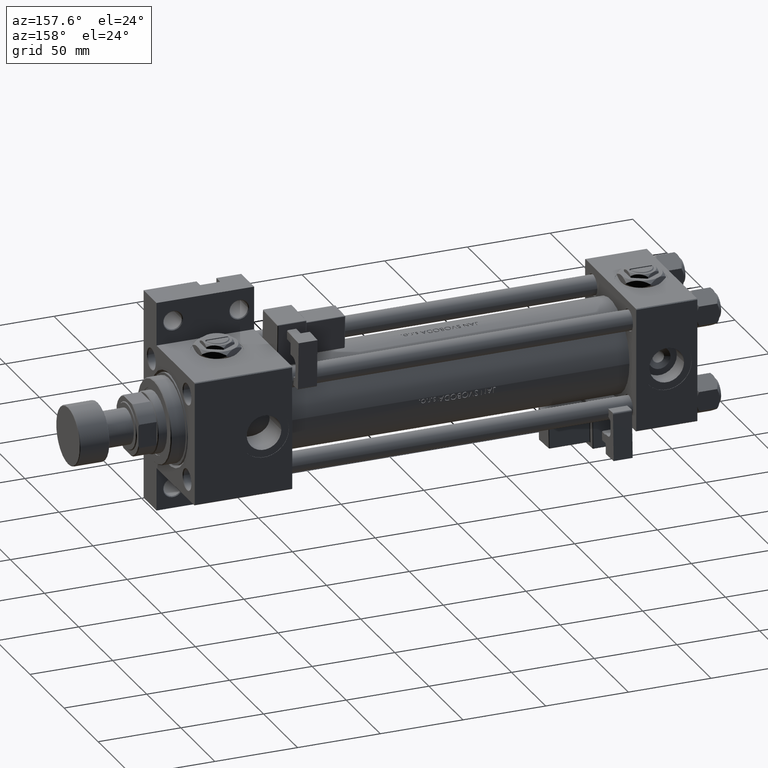
[diagram: clean part render]
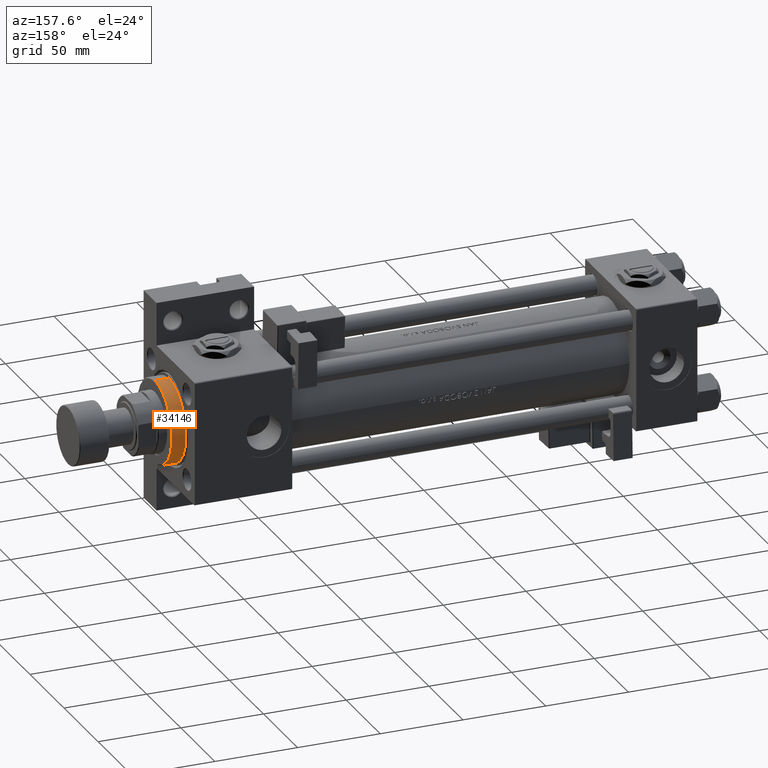
[diagram: same view with one face highlighted and labeled with its STEP entity id]
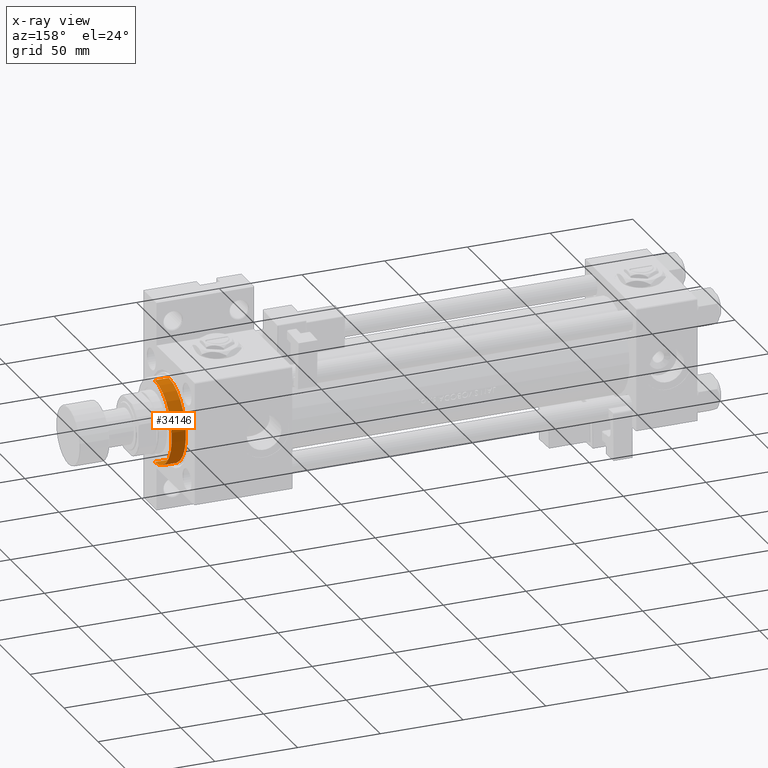
[diagram: x-ray of the same camera — body ghosted, the highlighted face saturated]
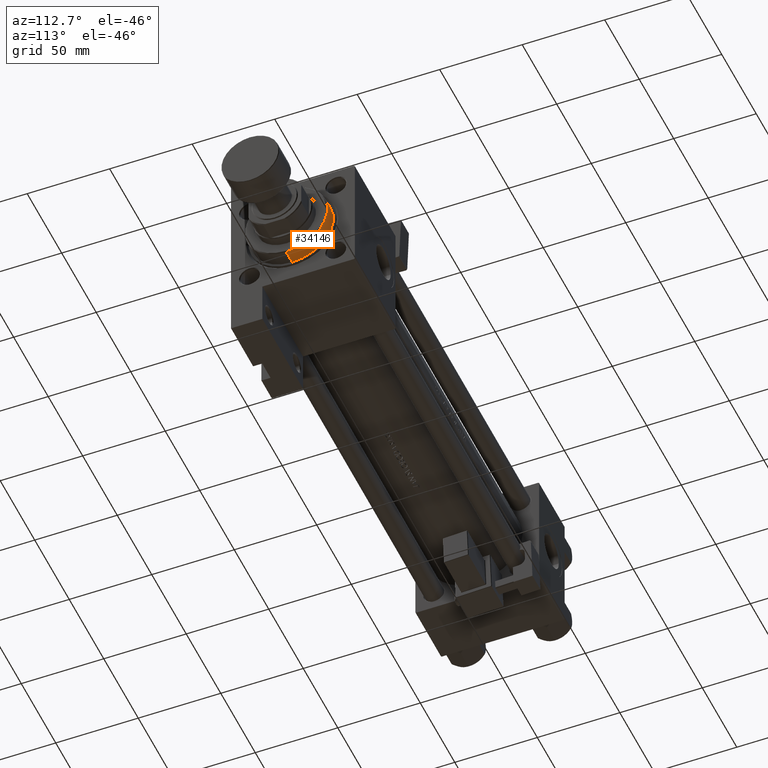
[diagram: same view with one face highlighted and labeled with its STEP entity id]
A machine part, auxiliary view. The second image highlights one B-rep face of the part: STEP entity #34146.
The next image is the same camera in x-ray: the body ghosted, the highlighted face saturated — about 0% of this face is hidden behind the body in this view.
A second angle (auxiliary view) of the same face is appended — the face is thin or edge-on in the first view.
In plain terms, the highlighted cylindrical surface (partial cylindrical patch) has radius 25 mm, axis along (-1, 0, 0).
Its self-contained STEP definition (entity closure, byte-faithful):
#1025 = ORIENTED_EDGE ( 'NONE', *, *, #17837, .T. ) ;
#1619 = LINE ( 'NONE', #30474, #20829 ) ;
#4899 = DIRECTION ( 'NONE',  ( 0.000000000000000000, 0.000000000000000000, -1.000000000000000000 ) ) ;
#6096 = AXIS2_PLACEMENT_3D ( 'NONE', #19765, #44142, #36464 ) ;
#7431 = LINE ( 'NONE', #39498, #27236 ) ;
#8668 = VERTEX_POINT ( 'NONE', #51876 ) ;
#11913 = DIRECTION ( 'NONE',  ( 1.000000000000000000, 0.000000000000000000, 0.000000000000000000 ) ) ;
#15082 = DIRECTION ( 'NONE',  ( 0.000000000000000000, 0.000000000000000000, 1.000000000000000000 ) ) ;
#15786 = CIRCLE ( 'NONE', #25938, 25.00000000000000000 ) ;
#16679 = EDGE_CURVE ( 'NONE', #23454, #26683, #1619, .T. ) ;
#17837 = EDGE_CURVE ( 'NONE', #26683, #23383, #15786, .T. ) ;
#19600 = CIRCLE ( 'NONE', #44980, 25.00000000000000000 ) ;
#19765 = CARTESIAN_POINT ( 'NONE',  ( 0.000000000000000000, 0.000000000000000000, 37.69999999999999574 ) ) ;
#20829 = VECTOR ( 'NONE', #34445, 1000.000000000000000 ) ;
#22084 = ORIENTED_EDGE ( 'NONE', *, *, #16679, .T. ) ;
#23383 = VERTEX_POINT ( 'NONE', #48440 ) ;
#23454 = VERTEX_POINT ( 'NONE', #23559 ) ;
#23559 = CARTESIAN_POINT ( 'NONE',  ( -25.00000000000000000, 0.000000000000000000, 37.20000000000001705 ) ) ;
#24322 = ORIENTED_EDGE ( 'NONE', *, *, #29670, .F. ) ;
#25938 = AXIS2_PLACEMENT_3D ( 'NONE', #32048, #15082, #11913 ) ;
#26683 = VERTEX_POINT ( 'NONE', #37483 ) ;
#27054 = DIRECTION ( 'NONE',  ( -0.000000000000000000, -0.000000000000000000, -1.000000000000000000 ) ) ;
#27236 = VECTOR ( 'NONE', #27054, 1000.000000000000000 ) ;
#28774 = FACE_OUTER_BOUND ( 'NONE', #44370, .T. ) ;
#29077 = EDGE_CURVE ( 'NONE', #8668, #23454, #19600, .T. ) ;
#29670 = EDGE_CURVE ( 'NONE', #8668, #23383, #7431, .T. ) ;
#30474 = CARTESIAN_POINT ( 'NONE',  ( -25.00000000000000000, 0.000000000000000000, 37.69999999999999574 ) ) ;
#32048 = CARTESIAN_POINT ( 'NONE',  ( 0.000000000000000000, 0.000000000000000000, 28.69999999999999929 ) ) ;
#33756 = DIRECTION ( 'NONE',  ( 1.000000000000000000, 0.000000000000000000, 0.000000000000000000 ) ) ;
#34146 = ADVANCED_FACE ( 'NONE', ( #28774 ), #44925, .T. ) ;
#34445 = DIRECTION ( 'NONE',  ( -0.000000000000000000, -0.000000000000000000, -1.000000000000000000 ) ) ;
#36464 = DIRECTION ( 'NONE',  ( -1.000000000000000000, 0.000000000000000000, 0.000000000000000000 ) ) ;
#37474 = CARTESIAN_POINT ( 'NONE',  ( 0.000000000000000000, 0.000000000000000000, 37.20000000000001705 ) ) ;
#37483 = CARTESIAN_POINT ( 'NONE',  ( -25.00000000000000000, 0.000000000000000000, 28.69999999999999929 ) ) ;
#39498 = CARTESIAN_POINT ( 'NONE',  ( 25.00000000000000000, 3.061616997868383043E-15, 37.69999999999999574 ) ) ;
#44142 = DIRECTION ( 'NONE',  ( -0.000000000000000000, -0.000000000000000000, -1.000000000000000000 ) ) ;
#44370 = EDGE_LOOP ( 'NONE', ( #24322, #50678, #22084, #1025 ) ) ;
#44925 = CYLINDRICAL_SURFACE ( 'NONE', #6096, 25.00000000000000000 ) ;
#44980 = AXIS2_PLACEMENT_3D ( 'NONE', #37474, #4899, #33756 ) ;
#48440 = CARTESIAN_POINT ( 'NONE',  ( 25.00000000000000000, 3.061616997868383043E-15, 28.69999999999999929 ) ) ;
#50678 = ORIENTED_EDGE ( 'NONE', *, *, #29077, .T. ) ;
#51876 = CARTESIAN_POINT ( 'NONE',  ( 25.00000000000000000, 3.061616997868383043E-15, 37.20000000000001705 ) ) ;